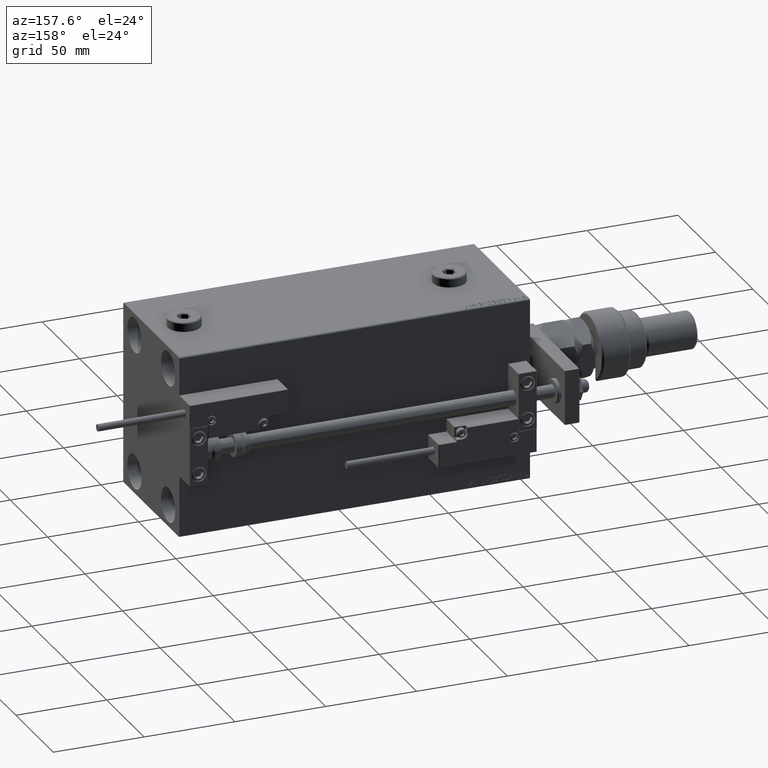
[diagram: clean part render]
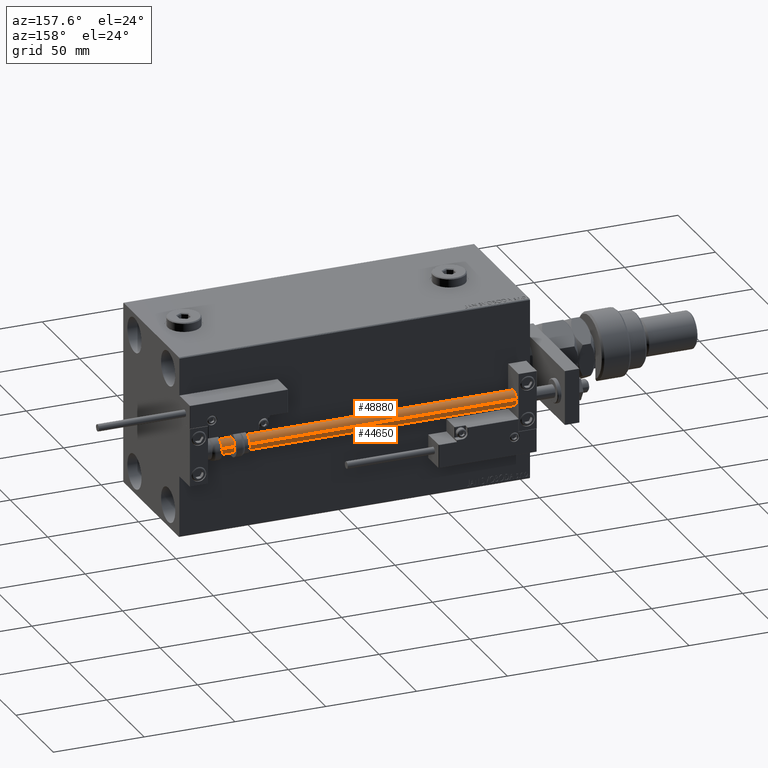
[diagram: same view with one multi-face feature highlighted, each face labeled with its STEP entity id]
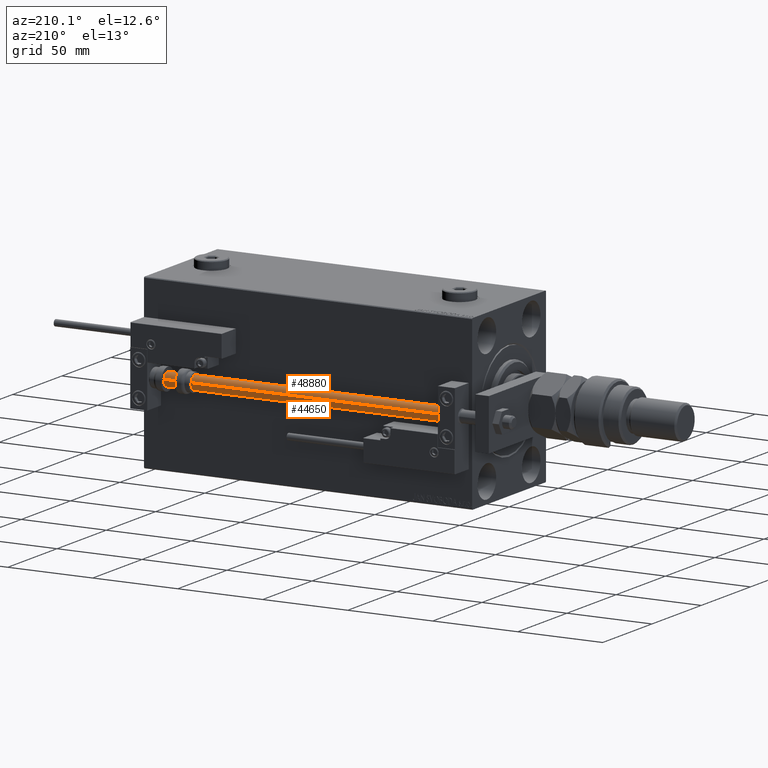
[diagram: same view with one multi-face feature highlighted, each face labeled with its STEP entity id]
A machine part, auxiliary view. The highlighted faces form ONE feature: a constant-radius fillet chain: 2 tangent blend faces with common blend radius 4 mm. The faces share edges in the B-rep.
A second angle (auxiliary view) of the same feature is appended — it is thin or edge-on in the first view.
Their STEP definitions:
[1] entity #48880 (Cylinder):
#879 = DIRECTION ( 'NONE',  ( -0.000000000000000000, -0.000000000000000000, -1.000000000000000000 ) ) ;
#1358 = VERTEX_POINT ( 'NONE', #44604 ) ;
#2608 = DIRECTION ( 'NONE',  ( -0.000000000000000000, -0.000000000000000000, 1.000000000000000000 ) ) ;
#3116 = DIRECTION ( 'NONE',  ( -0.000000000000000000, -0.000000000000000000, -1.000000000000000000 ) ) ;
#4381 = CARTESIAN_POINT ( 'NONE',  ( 4.000000000000000000, 4.898587196589412829E-16, 2.000000000000029310 ) ) ;
#5750 = CARTESIAN_POINT ( 'NONE',  ( 0.000000000000000000, 0.000000000000000000, 193.0000000000000000 ) ) ;
#6707 = CARTESIAN_POINT ( 'NONE',  ( 0.000000000000000000, 0.000000000000000000, 193.0000000000000000 ) ) ;
#8483 = ORIENTED_EDGE ( 'NONE', *, *, #48652, .F. ) ;
#11759 = EDGE_LOOP ( 'NONE', ( #8483, #19113, #30087, #48948 ) ) ;
#14990 = CARTESIAN_POINT ( 'NONE',  ( 0.000000000000000000, 0.000000000000000000, 2.000000000000029310 ) ) ;
#15157 = VECTOR ( 'NONE', #21497, 1000.000000000000000 ) ;
#17936 = CARTESIAN_POINT ( 'NONE',  ( -4.000000000000000000, 0.000000000000000000, 193.0000000000000000 ) ) ;
#19113 = ORIENTED_EDGE ( 'NONE', *, *, #19371, .T. ) ;
#19371 = EDGE_CURVE ( 'NONE', #45512, #36545, #43585, .T. ) ;
#19431 = CIRCLE ( 'NONE', #53720, 4.000000000000000000 ) ;
#19696 = AXIS2_PLACEMENT_3D ( 'NONE', #5750, #22557, #39658 ) ;
#21497 = DIRECTION ( 'NONE',  ( -0.000000000000000000, -0.000000000000000000, -1.000000000000000000 ) ) ;
#22557 = DIRECTION ( 'NONE',  ( 0.000000000000000000, 0.000000000000000000, 1.000000000000000000 ) ) ;
#22757 = VECTOR ( 'NONE', #879, 1000.000000000000000 ) ;
#24009 = CARTESIAN_POINT ( 'NONE',  ( -4.000000000000000000, 0.000000000000000000, 193.0000000000000000 ) ) ;
#24108 = CIRCLE ( 'NONE', #19696, 4.000000000000000000 ) ;
#24707 = VERTEX_POINT ( 'NONE', #17936 ) ;
#30087 = ORIENTED_EDGE ( 'NONE', *, *, #38836, .T. ) ;
#32897 = AXIS2_PLACEMENT_3D ( 'NONE', #6707, #3116, #35927 ) ;
#34056 = CARTESIAN_POINT ( 'NONE',  ( 4.000000000000000000, 4.898587196589412829E-16, 193.0000000000000000 ) ) ;
#35927 = DIRECTION ( 'NONE',  ( -1.000000000000000000, 0.000000000000000000, 0.000000000000000000 ) ) ;
#36545 = VERTEX_POINT ( 'NONE', #4381 ) ;
#38836 = EDGE_CURVE ( 'NONE', #36545, #1358, #19431, .T. ) ;
#39658 = DIRECTION ( 'NONE',  ( 1.000000000000000000, 0.000000000000000000, 0.000000000000000000 ) ) ;
#43585 = LINE ( 'NONE', #47456, #22757 ) ;
#44604 = CARTESIAN_POINT ( 'NONE',  ( -4.000000000000000000, 0.000000000000000000, 2.000000000000029310 ) ) ;
#44950 = LINE ( 'NONE', #24009, #15157 ) ;
#44992 = FACE_OUTER_BOUND ( 'NONE', #11759, .T. ) ;
#45512 = VERTEX_POINT ( 'NONE', #34056 ) ;
#45981 = EDGE_CURVE ( 'NONE', #24707, #1358, #44950, .T. ) ;
#47456 = CARTESIAN_POINT ( 'NONE',  ( 4.000000000000000000, 4.898587196589412829E-16, 193.0000000000000000 ) ) ;
#48652 = EDGE_CURVE ( 'NONE', #45512, #24707, #24108, .T. ) ;
#48880 = ADVANCED_FACE ( 'NONE', ( #44992 ), #52981, .T. ) ;
#48948 = ORIENTED_EDGE ( 'NONE', *, *, #45981, .F. ) ;
#52485 = DIRECTION ( 'NONE',  ( 1.000000000000000000, 0.000000000000000000, 0.000000000000000000 ) ) ;
#52981 = CYLINDRICAL_SURFACE ( 'NONE', #32897, 4.000000000000000000 ) ;
#53720 = AXIS2_PLACEMENT_3D ( 'NONE', #14990, #2608, #52485 ) ;
[2] entity #44650 (Cylinder):
#879 = DIRECTION ( 'NONE',  ( -0.000000000000000000, -0.000000000000000000, -1.000000000000000000 ) ) ;
#1358 = VERTEX_POINT ( 'NONE', #44604 ) ;
#4381 = CARTESIAN_POINT ( 'NONE',  ( 4.000000000000000000, 4.898587196589412829E-16, 2.000000000000029310 ) ) ;
#4583 = EDGE_LOOP ( 'NONE', ( #43563, #50871, #52142, #5799 ) ) ;
#5799 = ORIENTED_EDGE ( 'NONE', *, *, #22531, .T. ) ;
#6140 = DIRECTION ( 'NONE',  ( -0.000000000000000000, -0.000000000000000000, 1.000000000000000000 ) ) ;
#11390 = CARTESIAN_POINT ( 'NONE',  ( 0.000000000000000000, 0.000000000000000000, 193.0000000000000000 ) ) ;
#13103 = AXIS2_PLACEMENT_3D ( 'NONE', #27083, #6140, #39784 ) ;
#15157 = VECTOR ( 'NONE', #21497, 1000.000000000000000 ) ;
#17936 = CARTESIAN_POINT ( 'NONE',  ( -4.000000000000000000, 0.000000000000000000, 193.0000000000000000 ) ) ;
#19025 = DIRECTION ( 'NONE',  ( 1.000000000000000000, 0.000000000000000000, 0.000000000000000000 ) ) ;
#19371 = EDGE_CURVE ( 'NONE', #45512, #36545, #43585, .T. ) ;
#19387 = DIRECTION ( 'NONE',  ( -0.000000000000000000, -0.000000000000000000, -1.000000000000000000 ) ) ;
#21497 = DIRECTION ( 'NONE',  ( -0.000000000000000000, -0.000000000000000000, -1.000000000000000000 ) ) ;
#22531 = EDGE_CURVE ( 'NONE', #1358, #36545, #42115, .T. ) ;
#22757 = VECTOR ( 'NONE', #879, 1000.000000000000000 ) ;
#23520 = CYLINDRICAL_SURFACE ( 'NONE', #29192, 4.000000000000000000 ) ;
#24009 = CARTESIAN_POINT ( 'NONE',  ( -4.000000000000000000, 0.000000000000000000, 193.0000000000000000 ) ) ;
#24707 = VERTEX_POINT ( 'NONE', #17936 ) ;
#27083 = CARTESIAN_POINT ( 'NONE',  ( 0.000000000000000000, 0.000000000000000000, 2.000000000000029310 ) ) ;
#27570 = AXIS2_PLACEMENT_3D ( 'NONE', #35316, #31174, #19025 ) ;
#29192 = AXIS2_PLACEMENT_3D ( 'NONE', #11390, #19387, #48872 ) ;
#31174 = DIRECTION ( 'NONE',  ( 0.000000000000000000, 0.000000000000000000, 1.000000000000000000 ) ) ;
#32084 = FACE_OUTER_BOUND ( 'NONE', #4583, .T. ) ;
#34056 = CARTESIAN_POINT ( 'NONE',  ( 4.000000000000000000, 4.898587196589412829E-16, 193.0000000000000000 ) ) ;
#35316 = CARTESIAN_POINT ( 'NONE',  ( 0.000000000000000000, 0.000000000000000000, 193.0000000000000000 ) ) ;
#36545 = VERTEX_POINT ( 'NONE', #4381 ) ;
#39784 = DIRECTION ( 'NONE',  ( 1.000000000000000000, 0.000000000000000000, 0.000000000000000000 ) ) ;
#42115 = CIRCLE ( 'NONE', #13103, 4.000000000000000000 ) ;
#43563 = ORIENTED_EDGE ( 'NONE', *, *, #19371, .F. ) ;
#43585 = LINE ( 'NONE', #47456, #22757 ) ;
#44604 = CARTESIAN_POINT ( 'NONE',  ( -4.000000000000000000, 0.000000000000000000, 2.000000000000029310 ) ) ;
#44650 = ADVANCED_FACE ( 'NONE', ( #32084 ), #23520, .T. ) ;
#44950 = LINE ( 'NONE', #24009, #15157 ) ;
#45512 = VERTEX_POINT ( 'NONE', #34056 ) ;
#45981 = EDGE_CURVE ( 'NONE', #24707, #1358, #44950, .T. ) ;
#47456 = CARTESIAN_POINT ( 'NONE',  ( 4.000000000000000000, 4.898587196589412829E-16, 193.0000000000000000 ) ) ;
#48296 = EDGE_CURVE ( 'NONE', #24707, #45512, #49584, .T. ) ;
#48872 = DIRECTION ( 'NONE',  ( -1.000000000000000000, 0.000000000000000000, 0.000000000000000000 ) ) ;
#49584 = CIRCLE ( 'NONE', #27570, 4.000000000000000000 ) ;
#50871 = ORIENTED_EDGE ( 'NONE', *, *, #48296, .F. ) ;
#52142 = ORIENTED_EDGE ( 'NONE', *, *, #45981, .T. ) ;